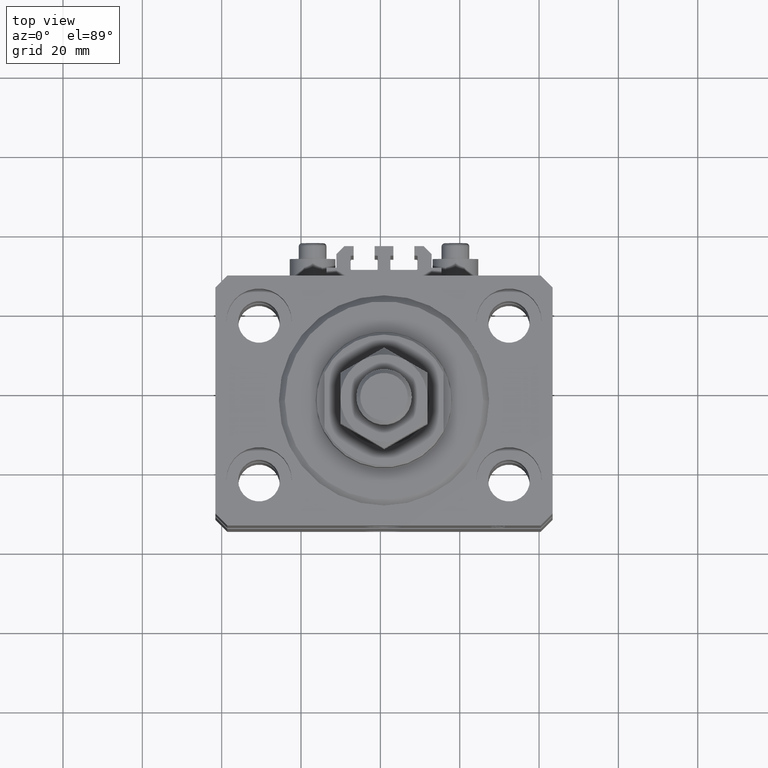
[diagram: clean part render]
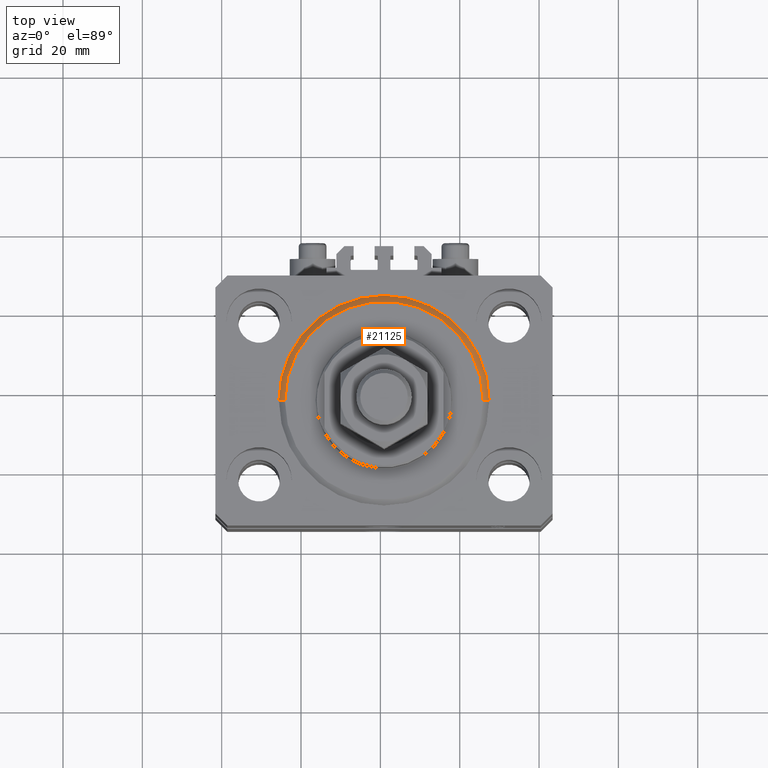
[diagram: same view with one face highlighted and labeled with its STEP entity id]
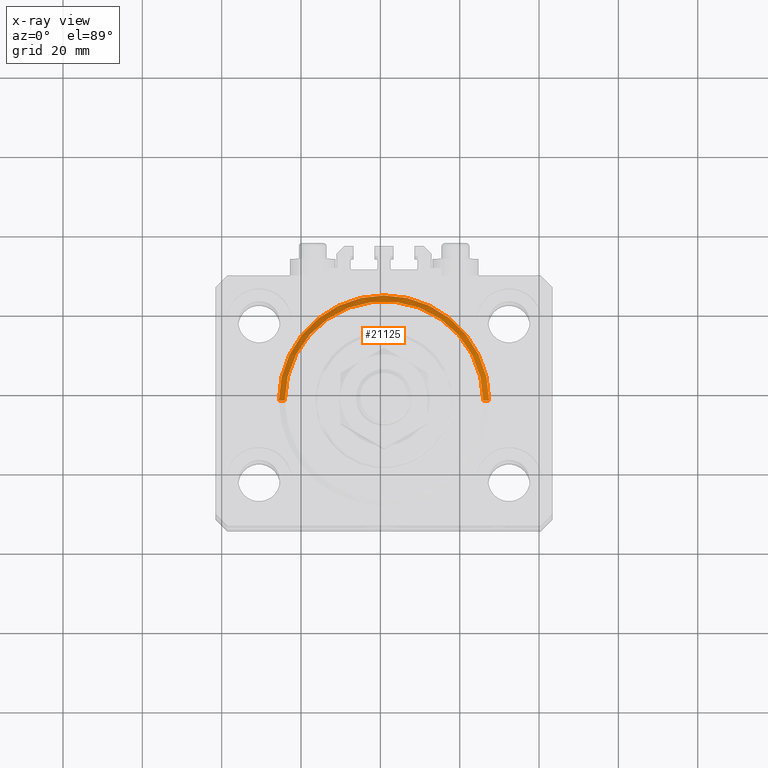
[diagram: x-ray of the same camera — body ghosted, the highlighted face saturated]
A machine part, top view. The second image highlights one B-rep face of the part: STEP entity #21125.
The next image is the same camera in x-ray: the body ghosted, the highlighted face saturated — about 0% of this face is hidden behind the body in this view.
In plain terms, the highlighted conical surface has half-angle 45 deg.
Its self-contained STEP definition (entity closure, byte-faithful):
#942 = CARTESIAN_POINT ( 'NONE',  ( 0.000000000000000000, 0.000000000000000000, 1.500000000000046407 ) ) ;
#1004 = VERTEX_POINT ( 'NONE', #16606 ) ;
#5315 = LINE ( 'NONE', #47066, #9327 ) ;
#7529 = EDGE_LOOP ( 'NONE', ( #25959, #31189, #23201, #8450 ) ) ;
#8450 = ORIENTED_EDGE ( 'NONE', *, *, #40372, .F. ) ;
#9327 = VECTOR ( 'NONE', #13018, 1000.000000000000000 ) ;
#12868 = DIRECTION ( 'NONE',  ( 1.000000000000000000, 0.000000000000000000, 0.000000000000000000 ) ) ;
#13018 = DIRECTION ( 'NONE',  ( -0.7071067811865491270, 8.659560562354952580E-17, 0.7071067811865459074 ) ) ;
#14456 = CARTESIAN_POINT ( 'NONE',  ( -26.50000000000000355, 0.000000000000000000, 1.500000000000046407 ) ) ;
#14752 = VERTEX_POINT ( 'NONE', #42702 ) ;
#15396 = CARTESIAN_POINT ( 'NONE',  ( 0.000000000000000000, 0.000000000000000000, 1.500000000000046407 ) ) ;
#15586 = VECTOR ( 'NONE', #48614, 1000.000000000000000 ) ;
#16606 = CARTESIAN_POINT ( 'NONE',  ( -24.99999999999995026, 3.153465507804431248E-15, 0.000000000000000000 ) ) ;
#17327 = CIRCLE ( 'NONE', #45090, 24.99999999999995026 ) ;
#18543 = EDGE_CURVE ( 'NONE', #14752, #32983, #32859, .T. ) ;
#18643 = AXIS2_PLACEMENT_3D ( 'NONE', #15396, #19846, #23318 ) ;
#19846 = DIRECTION ( 'NONE',  ( -0.000000000000000000, -0.000000000000000000, 1.000000000000000000 ) ) ;
#20910 = VERTEX_POINT ( 'NONE', #35554 ) ;
#21125 = ADVANCED_FACE ( 'NONE', ( #35243 ), #33699, .T. ) ;
#21674 = CARTESIAN_POINT ( 'NONE',  ( 0.000000000000000000, 0.000000000000000000, 0.000000000000000000 ) ) ;
#23201 = ORIENTED_EDGE ( 'NONE', *, *, #18543, .F. ) ;
#23318 = DIRECTION ( 'NONE',  ( 1.000000000000000000, 0.000000000000000000, 0.000000000000000000 ) ) ;
#25959 = ORIENTED_EDGE ( 'NONE', *, *, #44764, .F. ) ;
#30247 = EDGE_CURVE ( 'NONE', #1004, #32983, #5315, .T. ) ;
#31189 = ORIENTED_EDGE ( 'NONE', *, *, #30247, .T. ) ;
#32859 = CIRCLE ( 'NONE', #43185, 26.50000000000000355 ) ;
#32983 = VERTEX_POINT ( 'NONE', #14456 ) ;
#33426 = CARTESIAN_POINT ( 'NONE',  ( 26.50000000000000355, 0.000000000000000000, 1.500000000000046407 ) ) ;
#33699 = CONICAL_SURFACE ( 'NONE', #18643, 26.50000000000000355, 0.7853981633974506105 ) ;
#35243 = FACE_OUTER_BOUND ( 'NONE', #7529, .T. ) ;
#35554 = CARTESIAN_POINT ( 'NONE',  ( 24.99999999999995026, 0.000000000000000000, 0.000000000000000000 ) ) ;
#36935 = LINE ( 'NONE', #33426, #15586 ) ;
#40372 = EDGE_CURVE ( 'NONE', #20910, #14752, #36935, .T. ) ;
#40561 = DIRECTION ( 'NONE',  ( -0.000000000000000000, -0.000000000000000000, -1.000000000000000000 ) ) ;
#40810 = DIRECTION ( 'NONE',  ( 1.000000000000000000, 0.000000000000000000, 0.000000000000000000 ) ) ;
#42702 = CARTESIAN_POINT ( 'NONE',  ( 26.50000000000000355, 3.245314017740485765E-15, 1.500000000000046407 ) ) ;
#43185 = AXIS2_PLACEMENT_3D ( 'NONE', #942, #43187, #12868 ) ;
#43187 = DIRECTION ( 'NONE',  ( -0.000000000000000000, -0.000000000000000000, 1.000000000000000000 ) ) ;
#44764 = EDGE_CURVE ( 'NONE', #1004, #20910, #17327, .T. ) ;
#45090 = AXIS2_PLACEMENT_3D ( 'NONE', #21674, #40561, #40810 ) ;
#47066 = CARTESIAN_POINT ( 'NONE',  ( -26.50000000000000355, 3.245314017740486554E-15, 1.500000000000046407 ) ) ;
#48614 = DIRECTION ( 'NONE',  ( 0.7071067811865491270, 0.000000000000000000, 0.7071067811865459074 ) ) ;